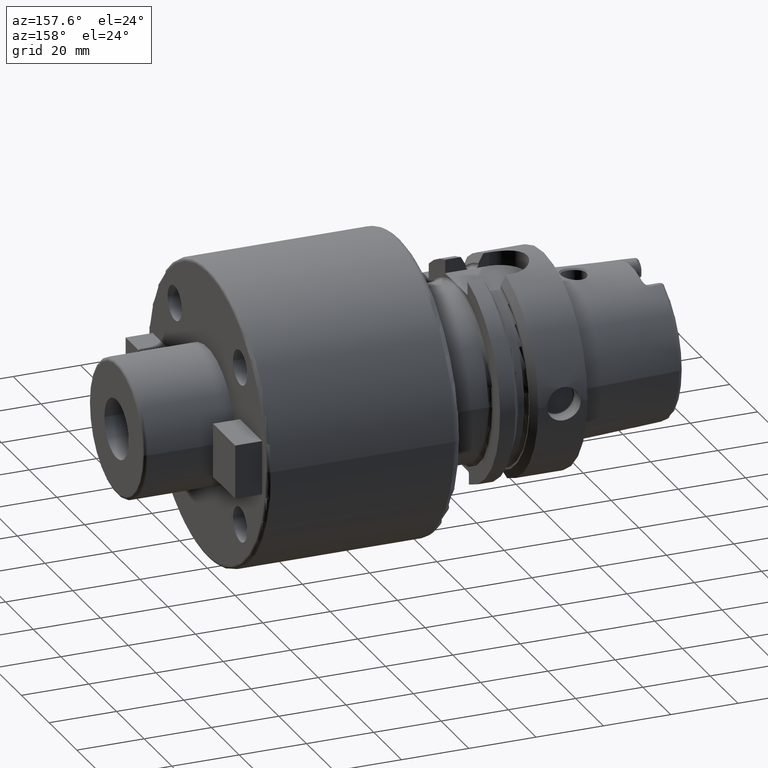
[diagram: clean part render]
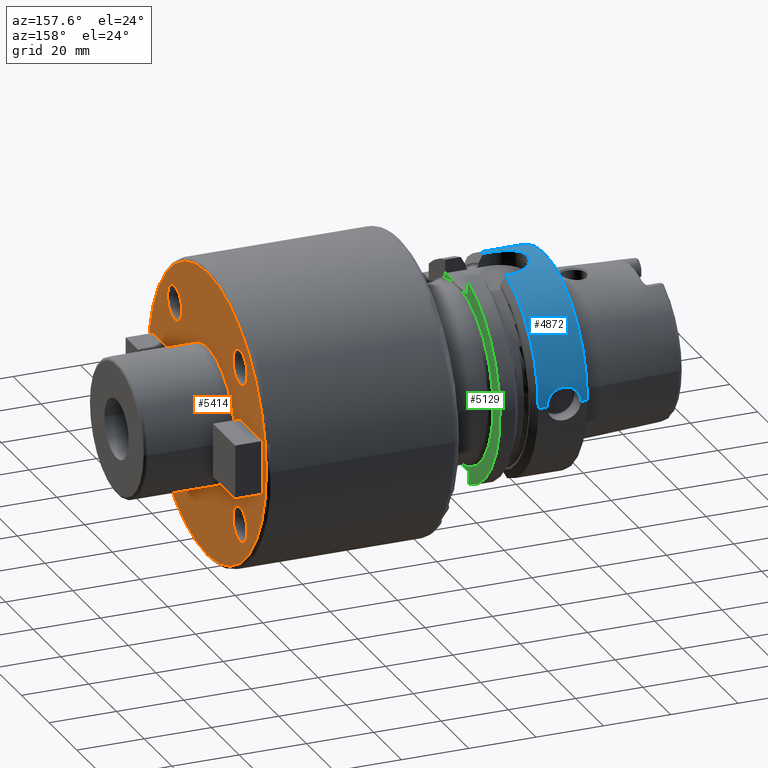
[diagram: same view with three faces highlighted in distinct colors, each labeled with its STEP entity id]
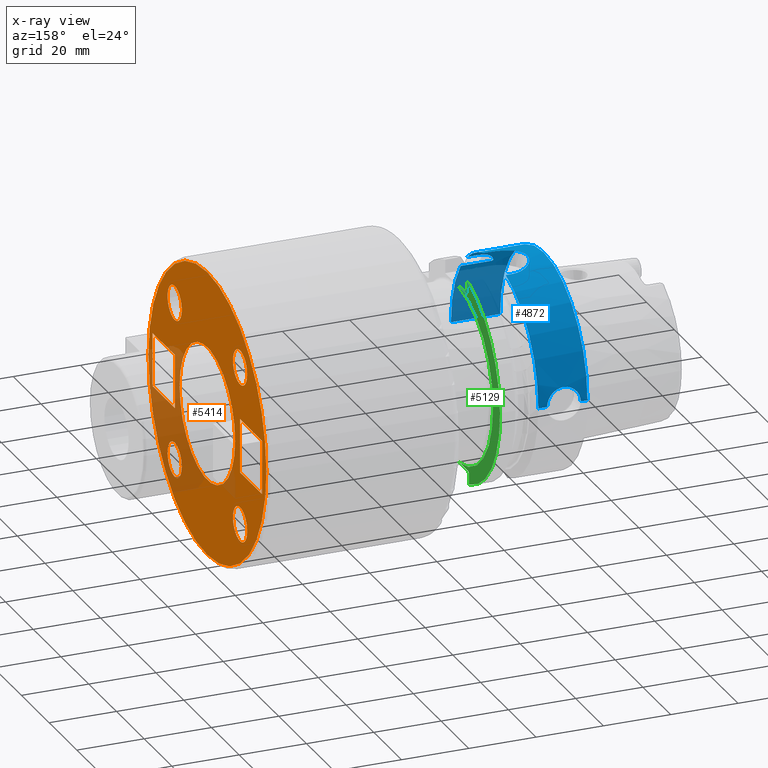
[diagram: x-ray of the same camera — body ghosted, the three highlighted faces saturated]
A machine part, auxiliary view with three faces highlighted in distinct colors.
The next image is the same camera in x-ray (body ghosted, the three faces saturated) — at least one of them is partly hidden behind the body in this view.
Their STEP definitions:

[orange] entity #5414 — the highlighted planar face has unit normal (1, 0, 0).
#1569=CARTESIAN_POINT('',(1.E2,0.E0,0.E0));
#1570=DIRECTION('',(1.E0,0.E0,0.E0));
#1571=DIRECTION('',(0.E0,1.E0,0.E0));
#1572=AXIS2_PLACEMENT_3D('',#1569,#1570,#1571);
#1574=CARTESIAN_POINT('',(1.E2,0.E0,0.E0));
#1575=DIRECTION('',(-1.E0,0.E0,0.E0));
#1576=DIRECTION('',(0.E0,1.E0,0.E0));
#1577=AXIS2_PLACEMENT_3D('',#1574,#1575,#1576);
#1579=CARTESIAN_POINT('',(1.E2,0.E0,0.E0));
#1580=DIRECTION('',(-1.E0,0.E0,0.E0));
#1581=DIRECTION('',(0.E0,1.E0,0.E0));
#1582=AXIS2_PLACEMENT_3D('',#1579,#1580,#1581);
#1584=CARTESIAN_POINT('',(1.E2,0.E0,0.E0));
#1585=DIRECTION('',(-1.E0,0.E0,0.E0));
#1586=DIRECTION('',(0.E0,-1.E0,0.E0));
#1587=AXIS2_PLACEMENT_3D('',#1584,#1585,#1586);
#1589=DIRECTION('',(0.E0,-1.E0,0.E0));
#1590=VECTOR('',#1589,1.6E1);
#1591=CARTESIAN_POINT('',(1.E2,3.95E1,8.E0));
#1592=LINE('',#1591,#1590);
#1593=DIRECTION('',(0.E0,0.E0,-1.E0));
#1594=VECTOR('',#1593,1.6E1);
#1595=CARTESIAN_POINT('',(1.E2,2.35E1,8.E0));
#1596=LINE('',#1595,#1594);
#1597=DIRECTION('',(0.E0,1.E0,0.E0));
#1598=VECTOR('',#1597,1.6E1);
#1599=CARTESIAN_POINT('',(1.E2,2.35E1,-8.E0));
#1600=LINE('',#1599,#1598);
#1601=DIRECTION('',(0.E0,0.E0,1.E0));
#1602=VECTOR('',#1601,1.6E1);
#1603=CARTESIAN_POINT('',(1.E2,3.95E1,-8.E0));
#1604=LINE('',#1603,#1602);
#1605=DIRECTION('',(0.E0,-1.E0,0.E0));
#1606=VECTOR('',#1605,1.6E1);
#1607=CARTESIAN_POINT('',(1.E2,-2.35E1,8.E0));
#1608=LINE('',#1607,#1606);
#1609=DIRECTION('',(0.E0,0.E0,-1.E0));
#1610=VECTOR('',#1609,1.6E1);
#1611=CARTESIAN_POINT('',(1.E2,-3.95E1,8.E0));
#1612=LINE('',#1611,#1610);
#1613=DIRECTION('',(0.E0,1.E0,0.E0));
#1614=VECTOR('',#1613,1.6E1);
#1615=CARTESIAN_POINT('',(1.E2,-3.95E1,-8.E0));
#1616=LINE('',#1615,#1614);
#1617=DIRECTION('',(0.E0,0.E0,1.E0));
#1618=VECTOR('',#1617,1.6E1);
#1619=CARTESIAN_POINT('',(1.E2,-2.35E1,-8.E0));
#1620=LINE('',#1619,#1618);
#1621=CARTESIAN_POINT('',(1.E2,2.358201115257E1,2.358201115257E1));
#1622=DIRECTION('',(1.E0,0.E0,0.E0));
#1623=DIRECTION('',(0.E0,-1.E0,0.E0));
#1624=AXIS2_PLACEMENT_3D('',#1621,#1622,#1623);
#1626=CARTESIAN_POINT('',(1.E2,2.358201115257E1,2.358201115257E1));
#1627=DIRECTION('',(1.E0,0.E0,0.E0));
#1628=DIRECTION('',(0.E0,1.E0,0.E0));
#1629=AXIS2_PLACEMENT_3D('',#1626,#1627,#1628);
#1631=CARTESIAN_POINT('',(1.E2,-2.358201115257E1,2.358201115257E1));
#1632=DIRECTION('',(1.E0,0.E0,0.E0));
#1633=DIRECTION('',(0.E0,0.E0,-1.E0));
#1634=AXIS2_PLACEMENT_3D('',#1631,#1632,#1633);
#1636=CARTESIAN_POINT('',(1.E2,-2.358201115257E1,2.358201115257E1));
#1637=DIRECTION('',(1.E0,0.E0,0.E0));
#1638=DIRECTION('',(0.E0,0.E0,1.E0));
#1639=AXIS2_PLACEMENT_3D('',#1636,#1637,#1638);
#1641=CARTESIAN_POINT('',(1.E2,-2.358201115257E1,-2.358201115257E1));
#1642=DIRECTION('',(1.E0,0.E0,0.E0));
#1643=DIRECTION('',(0.E0,1.E0,0.E0));
#1644=AXIS2_PLACEMENT_3D('',#1641,#1642,#1643);
#1646=CARTESIAN_POINT('',(1.E2,-2.358201115257E1,-2.358201115257E1));
#1647=DIRECTION('',(1.E0,0.E0,0.E0));
#1648=DIRECTION('',(0.E0,-1.E0,0.E0));
#1649=AXIS2_PLACEMENT_3D('',#1646,#1647,#1648);
#1651=CARTESIAN_POINT('',(1.E2,2.358201115257E1,-2.358201115257E1));
#1652=DIRECTION('',(1.E0,0.E0,0.E0));
#1653=DIRECTION('',(0.E0,0.E0,1.E0));
#1654=AXIS2_PLACEMENT_3D('',#1651,#1652,#1653);
#1656=CARTESIAN_POINT('',(1.E2,2.358201115257E1,-2.358201115257E1));
#1657=DIRECTION('',(1.E0,0.E0,0.E0));
#1658=DIRECTION('',(0.E0,0.E0,-1.E0));
#1659=AXIS2_PLACEMENT_3D('',#1656,#1657,#1658);
#3407=CARTESIAN_POINT('',(1.E2,2.E1,0.E0));
#3408=CARTESIAN_POINT('',(1.E2,-2.E1,0.E0));
#3409=VERTEX_POINT('',#3407);
#3410=VERTEX_POINT('',#3408);
#3415=CARTESIAN_POINT('',(1.E2,4.25E1,0.E0));
#3416=CARTESIAN_POINT('',(1.E2,-4.25E1,-1.040949779275E-14));
#3417=VERTEX_POINT('',#3415);
#3418=VERTEX_POINT('',#3416);
#3443=CARTESIAN_POINT('',(1.E2,3.95E1,8.E0));
#3444=CARTESIAN_POINT('',(1.E2,2.35E1,8.E0));
#3445=VERTEX_POINT('',#3443);
#3446=VERTEX_POINT('',#3444);
#3447=CARTESIAN_POINT('',(1.E2,2.35E1,-8.E0));
#3448=VERTEX_POINT('',#3447);
#3449=CARTESIAN_POINT('',(1.E2,3.95E1,-8.E0));
#3450=VERTEX_POINT('',#3449);
#3451=CARTESIAN_POINT('',(1.E2,-2.35E1,8.E0));
#3452=CARTESIAN_POINT('',(1.E2,-3.95E1,8.E0));
#3453=VERTEX_POINT('',#3451);
#3454=VERTEX_POINT('',#3452);
#3455=CARTESIAN_POINT('',(1.E2,-3.95E1,-8.E0));
#3456=VERTEX_POINT('',#3455);
#3457=CARTESIAN_POINT('',(1.E2,-2.35E1,-8.E0));
#3458=VERTEX_POINT('',#3457);
#3532=CARTESIAN_POINT('',(1.E2,1.848201115257E1,2.358201115257E1));
#3533=CARTESIAN_POINT('',(1.E2,2.868201115257E1,2.358201115257E1));
#3534=VERTEX_POINT('',#3532);
#3535=VERTEX_POINT('',#3533);
#3542=CARTESIAN_POINT('',(1.E2,-2.358201115257E1,1.848201115257E1));
#3543=CARTESIAN_POINT('',(1.E2,-2.358201115257E1,2.868201115257E1));
#3544=VERTEX_POINT('',#3542);
#3545=VERTEX_POINT('',#3543);
#3552=CARTESIAN_POINT('',(1.E2,-1.848201115257E1,-2.358201115257E1));
#3553=CARTESIAN_POINT('',(1.E2,-2.868201115257E1,-2.358201115257E1));
#3554=VERTEX_POINT('',#3552);
#3555=VERTEX_POINT('',#3553);
#3562=CARTESIAN_POINT('',(1.E2,2.358201115257E1,-1.848201115257E1));
#3563=CARTESIAN_POINT('',(1.E2,2.358201115257E1,-2.868201115257E1));
#3564=VERTEX_POINT('',#3562);
#3565=VERTEX_POINT('',#3563);
#5355=CARTESIAN_POINT('',(1.E2,0.E0,0.E0));
#5356=DIRECTION('',(1.E0,0.E0,0.E0));
#5357=DIRECTION('',(0.E0,-1.E0,0.E0));
#5358=AXIS2_PLACEMENT_3D('',#5355,#5356,#5357);
#5359=PLANE('',#5358);
#5360=ORIENTED_EDGE('',*,*,#5349,.T.);
#5361=ORIENTED_EDGE('',*,*,#5335,.T.);
#5362=EDGE_LOOP('',(#5360,#5361));
#5363=FACE_OUTER_BOUND('',#5362,.F.);
#5365=ORIENTED_EDGE('',*,*,#5364,.T.);
#5367=ORIENTED_EDGE('',*,*,#5366,.F.);
#5368=EDGE_LOOP('',(#5365,#5367));
#5369=FACE_BOUND('',#5368,.F.);
#5371=ORIENTED_EDGE('',*,*,#5370,.T.);
#5373=ORIENTED_EDGE('',*,*,#5372,.T.);
#5375=ORIENTED_EDGE('',*,*,#5374,.T.);
#5377=ORIENTED_EDGE('',*,*,#5376,.T.);
#5378=EDGE_LOOP('',(#5371,#5373,#5375,#5377));
#5379=FACE_BOUND('',#5378,.F.);
#5381=ORIENTED_EDGE('',*,*,#5380,.T.);
#5383=ORIENTED_EDGE('',*,*,#5382,.T.);
#5385=ORIENTED_EDGE('',*,*,#5384,.T.);
#5387=ORIENTED_EDGE('',*,*,#5386,.T.);
#5388=EDGE_LOOP('',(#5381,#5383,#5385,#5387));
#5389=FACE_BOUND('',#5388,.F.);
#5391=ORIENTED_EDGE('',*,*,#5390,.T.);
#5393=ORIENTED_EDGE('',*,*,#5392,.T.);
#5394=EDGE_LOOP('',(#5391,#5393));
#5395=FACE_BOUND('',#5394,.F.);
#5397=ORIENTED_EDGE('',*,*,#5396,.T.);
#5399=ORIENTED_EDGE('',*,*,#5398,.T.);
#5400=EDGE_LOOP('',(#5397,#5399));
#5401=FACE_BOUND('',#5400,.F.);
#5403=ORIENTED_EDGE('',*,*,#5402,.T.);
#5405=ORIENTED_EDGE('',*,*,#5404,.T.);
#5406=EDGE_LOOP('',(#5403,#5405));
#5407=FACE_BOUND('',#5406,.F.);
#5409=ORIENTED_EDGE('',*,*,#5408,.T.);
#5411=ORIENTED_EDGE('',*,*,#5410,.T.);
#5412=EDGE_LOOP('',(#5409,#5411));
#5413=FACE_BOUND('',#5412,.F.);
#5414=ADVANCED_FACE('',(#5363,#5369,#5379,#5389,#5395,#5401,#5407,#5413),#5359,
.T.);
#1573=CIRCLE('',#1572,2.E1);
#1578=CIRCLE('',#1577,2.E1);
#1583=CIRCLE('',#1582,4.25E1);
#1588=CIRCLE('',#1587,4.25E1);
#1625=CIRCLE('',#1624,5.1E0);
#1630=CIRCLE('',#1629,5.1E0);
#1635=CIRCLE('',#1634,5.1E0);
#1640=CIRCLE('',#1639,5.1E0);
#1645=CIRCLE('',#1644,5.1E0);
#1650=CIRCLE('',#1649,5.1E0);
#1655=CIRCLE('',#1654,5.1E0);
#1660=CIRCLE('',#1659,5.1E0);
#5335=EDGE_CURVE('',#3418,#3417,#1588,.T.);
#5349=EDGE_CURVE('',#3417,#3418,#1583,.T.);
#5364=EDGE_CURVE('',#3409,#3410,#1573,.T.);
#5366=EDGE_CURVE('',#3409,#3410,#1578,.T.);
#5370=EDGE_CURVE('',#3445,#3446,#1592,.T.);
#5372=EDGE_CURVE('',#3446,#3448,#1596,.T.);
#5374=EDGE_CURVE('',#3448,#3450,#1600,.T.);
#5376=EDGE_CURVE('',#3450,#3445,#1604,.T.);
#5380=EDGE_CURVE('',#3453,#3454,#1608,.T.);
#5382=EDGE_CURVE('',#3454,#3456,#1612,.T.);
#5384=EDGE_CURVE('',#3456,#3458,#1616,.T.);
#5386=EDGE_CURVE('',#3458,#3453,#1620,.T.);
#5390=EDGE_CURVE('',#3534,#3535,#1625,.T.);
#5392=EDGE_CURVE('',#3535,#3534,#1630,.T.);
#5396=EDGE_CURVE('',#3544,#3545,#1635,.T.);
#5398=EDGE_CURVE('',#3545,#3544,#1640,.T.);
#5402=EDGE_CURVE('',#3554,#3555,#1645,.T.);
#5404=EDGE_CURVE('',#3555,#3554,#1650,.T.);
#5408=EDGE_CURVE('',#3564,#3565,#1655,.T.);
#5410=EDGE_CURVE('',#3565,#3564,#1660,.T.);

[blue] entity #4872 — the highlighted cylindrical surface (partial cylindrical patch) has radius 31.5 mm, axis along (1, 0, 0).
#1068=CARTESIAN_POINT('',(-1.421085471520E-14,0.E0,0.E0));
#1069=DIRECTION('',(1.E0,0.E0,0.E0));
#1070=DIRECTION('',(0.E0,1.E0,0.E0));
#1071=AXIS2_PLACEMENT_3D('',#1068,#1069,#1070);
#1088=CARTESIAN_POINT('',(5.055280953939E0,-2.412856222307E1,2.025000071719E1));
#1089=CARTESIAN_POINT('',(5.203922975858E0,-2.384570309261E1,2.058703695930E1));
#1090=CARTESIAN_POINT('',(5.532173076798E0,-2.330389811185E1,2.120403265678E1));
#1091=CARTESIAN_POINT('',(6.096196943704E0,-2.257931058132E1,2.197133577912E1));
#1092=CARTESIAN_POINT('',(6.720663761460E0,-2.194020929485E1,2.260770262576E1));
#1093=CARTESIAN_POINT('',(7.403538650806E0,-2.138093627305E1,2.313587798030E1));
#1094=CARTESIAN_POINT('',(8.127595486115E0,-2.090969369163E1,2.356146143823E1));
#1095=CARTESIAN_POINT('',(8.885468985840E0,-2.052416799416E1,2.389720051652E1));
#1096=CARTESIAN_POINT('',(9.676498842341E0,-2.022243837463E1,2.415242961118E1));
#1097=CARTESIAN_POINT('',(1.047995851280E1,-2.000874678948E1,2.432931831120E1));
#1098=CARTESIAN_POINT('',(1.130639266309E1,-1.987868667877E1,2.443545312812E1));
#1099=CARTESIAN_POINT('',(1.185909309251E1,-1.985E1,2.445868966237E1));
#1100=CARTESIAN_POINT('',(1.213701040303E1,-1.985E1,2.445868966237E1));
#1102=DIRECTION('',(1.E0,2.905293196731E-8,-6.510821817001E-8));
#1103=VECTOR('',#1102,9.286887939886E0);
#1104=CARTESIAN_POINT('',(5.335612985355E0,-2.445868993218E1,1.985000060465E1));
#1105=LINE('',#1104,#1103);
#1106=CARTESIAN_POINT('',(1.462250092524E1,0.E0,0.E0));
#1107=DIRECTION('',(1.E0,0.E0,0.E0));
#1108=DIRECTION('',(0.E0,-7.764663384879E-1,6.301587301587E-1));
#1109=AXIS2_PLACEMENT_3D('',#1106,#1107,#1108);
#1111=CARTESIAN_POINT('',(7.E0,3.110064308017E1,5.E0));
#1112=CARTESIAN_POINT('',(6.762289362530E0,3.110064308017E1,5.E0));
#1113=CARTESIAN_POINT('',(6.291638752551E0,3.110604175503E1,4.966603315548E0));
#1114=CARTESIAN_POINT('',(5.590941042085E0,3.113002312530E1,4.815051890973E0));
#1115=CARTESIAN_POINT('',(4.922622791572E0,3.116768162346E1,4.566770855038E0));
#1116=CARTESIAN_POINT('',(4.290278046526E0,3.121652868953E1,4.222399367418E0));
#1117=CARTESIAN_POINT('',(3.717410291985E0,3.127184393545E1,3.794316921940E0));
#1118=CARTESIAN_POINT('',(3.206193230594E0,3.133001984817E1,3.283155949907E0));
#1119=CARTESIAN_POINT('',(2.778140338616E0,3.138511708835E1,2.710581430129E0));
#1120=CARTESIAN_POINT('',(2.433504878656E0,3.143364983629E1,2.077962340417E0));
#1121=CARTESIAN_POINT('',(2.185264531596E0,3.147092658786E1,1.410162050339E0));
#1122=CARTESIAN_POINT('',(2.033388478478E0,3.149467218381E1,7.086038393014E-1));
#1123=CARTESIAN_POINT('',(2.E0,3.15E1,2.377507523918E-1));
#1124=CARTESIAN_POINT('',(2.E0,3.15E1,-1.916034746595E-14));
#1126=CARTESIAN_POINT('',(1.2E1,3.15E1,0.E0));
#1127=CARTESIAN_POINT('',(1.2E1,3.15E1,2.377495474180E-1));
#1128=CARTESIAN_POINT('',(1.196662761645E1,3.149467458654E1,7.086186534272E-1));
#1129=CARTESIAN_POINT('',(1.181460579439E1,3.147090665108E1,1.410624843432E0));
#1130=CARTESIAN_POINT('',(1.156638499402E1,3.143363374637E1,2.078189492676E0));
#1131=CARTESIAN_POINT('',(1.122165706390E1,3.138508950965E1,2.710906952246E0));
#1132=CARTESIAN_POINT('',(1.079359615750E1,3.132999459490E1,3.283389066833E0));
#1133=CARTESIAN_POINT('',(1.028239612207E1,3.127182308878E1,3.794489355038E0));
#1134=CARTESIAN_POINT('',(9.709426385252E0,3.121650334061E1,4.222584855819E0));
#1135=CARTESIAN_POINT('',(9.077222790639E0,3.116767152827E1,4.566838108074E0));
#1136=CARTESIAN_POINT('',(8.408812552891E0,3.113001179404E1,4.815125199641E0));
#1137=CARTESIAN_POINT('',(7.708232303628E0,3.110603996499E1,4.966613968094E0));
#1138=CARTESIAN_POINT('',(7.237659908688E0,3.110064308017E1,5.E0));
#1139=CARTESIAN_POINT('',(7.E0,3.110064308017E1,5.E0));
#1141=CARTESIAN_POINT('',(1.462250092524E1,0.E0,0.E0));
#1142=DIRECTION('',(1.E0,0.E0,0.E0));
#1143=DIRECTION('',(0.E0,1.E0,0.E0));
#1144=AXIS2_PLACEMENT_3D('',#1141,#1142,#1143);
#1146=DIRECTION('',(1.E0,0.E0,0.E0));
#1147=VECTOR('',#1146,1.655000925241E0);
#1148=CARTESIAN_POINT('',(1.29675E1,8.0175E0,3.046259499370E1));
#1149=LINE('',#1148,#1147);
#1150=CARTESIAN_POINT('',(1.29675E1,-8.0175E0,3.046259499370E1));
#1151=CARTESIAN_POINT('',(1.262029466193E1,-8.0175E0,3.046259499370E1));
#1152=CARTESIAN_POINT('',(1.193292082029E1,-7.972856309682E0,3.047439785027E1));
#1153=CARTESIAN_POINT('',(1.091425902188E1,-7.773176787902E0,3.052624418591E1));
#1154=CARTESIAN_POINT('',(9.934126849983E0,-7.445404290975E0,3.060831570964E1));
#1155=CARTESIAN_POINT('',(9.004286205686E0,-6.994846174415E0,3.071501370342E1));
#1156=CARTESIAN_POINT('',(8.138619971222E0,-6.428343040649E0,3.083929437245E1));
#1157=CARTESIAN_POINT('',(7.341033244269E0,-5.744094981007E0,3.097488281900E1));
#1158=CARTESIAN_POINT('',(6.636610015904E0,-4.956823973346E0,3.111134005505E1));
#1159=CARTESIAN_POINT('',(6.043298615168E0,-4.087231355503E0,3.123817795333E1));
#1160=CARTESIAN_POINT('',(5.564354260648E0,-3.139626798488E0,3.134839057540E1));
#1161=CARTESIAN_POINT('',(5.208675508384E0,-2.115659667041E0,3.143476377212E1));
#1162=CARTESIAN_POINT('',(4.995564432998E0,-1.053473182399E0,3.148835416009E1));
#1163=CARTESIAN_POINT('',(4.927168873806E0,9.826508337445E-4,3.150583538732E1));
#1164=CARTESIAN_POINT('',(4.995760366771E0,1.054869977933E0,3.148830421554E1));
#1165=CARTESIAN_POINT('',(5.209100296272E0,2.117206961075E0,3.143465845843E1));
#1166=CARTESIAN_POINT('',(5.564768023101E0,3.140504656583E0,3.134829355759E1));
#1167=CARTESIAN_POINT('',(6.043465163200E0,4.087475455639E0,3.123814225608E1));
#1168=CARTESIAN_POINT('',(6.636650004810E0,4.956867733051E0,3.111133228169E1));
#1169=CARTESIAN_POINT('',(7.340978157719E0,5.744022439956E0,3.097489453754E1));
#1170=CARTESIAN_POINT('',(8.138191392118E0,6.427992830706E0,3.083936557780E1));
#1171=CARTESIAN_POINT('',(9.003473595842E0,6.994378480458E0,3.071512050332E1));
#1172=CARTESIAN_POINT('',(9.933336680083E0,7.445092599368E0,3.060839241432E1));
#1173=CARTESIAN_POINT('',(1.091365443769E1,7.773025904739E0,3.052628299010E1));
#1174=CARTESIAN_POINT('',(1.193250504209E1,7.972814414214E0,3.047440893684E1));
#1175=CARTESIAN_POINT('',(1.262014082393E1,8.0175E0,3.046259499370E1));
#1176=CARTESIAN_POINT('',(1.29675E1,8.0175E0,3.046259499370E1));
#1178=DIRECTION('',(1.E0,0.E0,0.E0));
#1179=VECTOR('',#1178,1.655000925241E0);
#1180=CARTESIAN_POINT('',(1.29675E1,-8.0175E0,3.046259499370E1));
#1181=LINE('',#1180,#1179);
#1182=CARTESIAN_POINT('',(1.462250092524E1,0.E0,0.E0));
#1183=DIRECTION('',(1.E0,0.E0,0.E0));
#1184=DIRECTION('',(0.E0,-2.545238095238E-1,9.670665077364E-1));
#1185=AXIS2_PLACEMENT_3D('',#1182,#1183,#1184);
#1187=DIRECTION('',(1.E0,0.E0,0.E0));
#1188=VECTOR('',#1187,2.485490522210E0);
#1189=CARTESIAN_POINT('',(1.213701040303E1,-1.985E1,2.445868966237E1));
#1190=LINE('',#1189,#1188);
#1200=CARTESIAN_POINT('',(5.335612985355E0,-2.445868993218E1,1.985000060465E1));
#1201=CARTESIAN_POINT('',(5.288536897563E0,-2.440508682723E1,1.991604905347E1));
#1202=CARTESIAN_POINT('',(5.194710350190E0,-2.429648646449E1,2.004876841892E1));
#1203=CARTESIAN_POINT('',(5.101613984819E0,-2.418502887122E1,2.018271879185E1));
#1204=CARTESIAN_POINT('',(5.055280953939E0,-2.412856222307E1,2.025000071719E1));
#1983=CARTESIAN_POINT('',(1.462250092524E1,-2.445868966237E1,1.985E1));
#2076=DIRECTION('',(-1.E0,0.E0,0.E0));
#2077=VECTOR('',#2076,2.622500925241E0);
#2078=CARTESIAN_POINT('',(1.462250092524E1,3.15E1,0.E0));
#2079=LINE('',#2078,#2077);
#2110=DIRECTION('',(-1.E0,0.E0,1.086605287208E-14));
#2111=VECTOR('',#2110,2.E0);
#2112=CARTESIAN_POINT('',(2.E0,3.15E1,-1.916034746595E-14));
#2113=LINE('',#2112,#2111);
#2114=DIRECTION('',(-1.E0,0.E0,0.E0));
#2115=VECTOR('',#2114,1.462250092524E1);
#2116=CARTESIAN_POINT('',(1.462250092524E1,-3.15E1,0.E0));
#2117=LINE('',#2116,#2115);
#2997=CARTESIAN_POINT('',(-1.421085471520E-14,3.15E1,0.E0));
#2998=CARTESIAN_POINT('',(-1.421085471520E-14,-3.15E1,0.E0));
#2999=VERTEX_POINT('',#2997);
#3000=VERTEX_POINT('',#2998);
#3218=CARTESIAN_POINT('',(1.462250092524E1,-3.15E1,0.E0));
#3219=VERTEX_POINT('',#3218);
#3244=CARTESIAN_POINT('',(7.E0,3.110064308017E1,5.E0));
#3245=VERTEX_POINT('',#3244);
#3248=VERTEX_POINT('',#1124);
#3249=VERTEX_POINT('',#1126);
#3250=CARTESIAN_POINT('',(1.462250092524E1,3.15E1,0.E0));
#3251=VERTEX_POINT('',#3250);
#3290=CARTESIAN_POINT('',(1.29675E1,8.0175E0,3.046259499370E1));
#3291=VERTEX_POINT('',#3290);
#3292=CARTESIAN_POINT('',(1.29675E1,-8.0175E0,3.046259499370E1));
#3293=VERTEX_POINT('',#3292);
#3314=VERTEX_POINT('',#1200);
#3315=VERTEX_POINT('',#1204);
#3322=CARTESIAN_POINT('',(1.213701040303E1,-1.985E1,2.445868966237E1));
#3323=VERTEX_POINT('',#3322);
#3328=CARTESIAN_POINT('',(1.462250092524E1,-8.0175E0,3.046259499370E1));
#3329=VERTEX_POINT('',#3328);
#3330=CARTESIAN_POINT('',(1.462250092524E1,8.0175E0,3.046259499370E1));
#3331=VERTEX_POINT('',#3330);
#3386=CARTESIAN_POINT('',(1.462250092524E1,-1.985E1,2.445868966237E1));
#3387=VERTEX_POINT('',#3386);
#3406=VERTEX_POINT('',#1983);
#4834=CARTESIAN_POINT('',(-3.49E1,0.E0,0.E0));
#4835=DIRECTION('',(1.E0,0.E0,0.E0));
#4836=DIRECTION('',(0.E0,-1.E0,0.E0));
#4837=AXIS2_PLACEMENT_3D('',#4834,#4835,#4836);
#4838=CYLINDRICAL_SURFACE('',#4837,3.15E1);
#4840=ORIENTED_EDGE('',*,*,#4839,.F.);
#4842=ORIENTED_EDGE('',*,*,#4841,.F.);
#4844=ORIENTED_EDGE('',*,*,#4843,.T.);
#4846=ORIENTED_EDGE('',*,*,#4845,.T.);
#4848=ORIENTED_EDGE('',*,*,#4847,.T.);
#4849=ORIENTED_EDGE('',*,*,#4823,.F.);
#4851=ORIENTED_EDGE('',*,*,#4850,.F.);
#4853=ORIENTED_EDGE('',*,*,#4852,.F.);
#4855=ORIENTED_EDGE('',*,*,#4854,.F.);
#4857=ORIENTED_EDGE('',*,*,#4856,.F.);
#4859=ORIENTED_EDGE('',*,*,#4858,.T.);
#4861=ORIENTED_EDGE('',*,*,#4860,.F.);
#4863=ORIENTED_EDGE('',*,*,#4862,.F.);
#4865=ORIENTED_EDGE('',*,*,#4864,.T.);
#4867=ORIENTED_EDGE('',*,*,#4866,.T.);
#4869=ORIENTED_EDGE('',*,*,#4868,.F.);
#4870=EDGE_LOOP('',(#4840,#4842,#4844,#4846,#4848,#4849,#4851,#4853,#4855,#4857,
#4859,#4861,#4863,#4865,#4867,#4869));
#4871=FACE_OUTER_BOUND('',#4870,.F.);
#4872=ADVANCED_FACE('',(#4871),#4838,.T.);
#1072=CIRCLE('',#1071,3.15E1);
#1101=B_SPLINE_CURVE_WITH_KNOTS('',3,(#1088,#1089,#1090,#1091,#1092,#1093,#1094,
#1095,#1096,#1097,#1098,#1099,#1100),.UNSPECIFIED.,.F.,.F.,(4,1,1,1,1,1,1,1,1,1,
4),(0.E0,1.E-1,2.E-1,3.E-1,4.E-1,5.E-1,6.E-1,7.E-1,8.E-1,9.E-1,1.E0),
.UNSPECIFIED.);
#1110=CIRCLE('',#1109,3.15E1);
#1125=B_SPLINE_CURVE_WITH_KNOTS('',3,(#1111,#1112,#1113,#1114,#1115,#1116,#1117,
#1118,#1119,#1120,#1121,#1122,#1123,#1124),.UNSPECIFIED.,.F.,.F.,(4,1,1,1,1,1,1,
1,1,1,1,4),(0.E0,9.090909090909E-2,1.818181818182E-1,2.727272727273E-1,
3.636363636364E-1,4.545454545455E-1,5.454545454545E-1,6.363636363636E-1,
7.272727272727E-1,8.181818181818E-1,9.090909090909E-1,1.E0),.UNSPECIFIED.);
#1140=B_SPLINE_CURVE_WITH_KNOTS('',3,(#1126,#1127,#1128,#1129,#1130,#1131,#1132,
#1133,#1134,#1135,#1136,#1137,#1138,#1139),.UNSPECIFIED.,.F.,.F.,(4,1,1,1,1,1,1,
1,1,1,1,4),(0.E0,9.090909090909E-2,1.818181818182E-1,2.727272727273E-1,
3.636363636364E-1,4.545454545455E-1,5.454545454545E-1,6.363636363636E-1,
7.272727272727E-1,8.181818181818E-1,9.090909090909E-1,1.E0),.UNSPECIFIED.);
#1145=CIRCLE('',#1144,3.15E1);
#1177=B_SPLINE_CURVE_WITH_KNOTS('',3,(#1150,#1151,#1152,#1153,#1154,#1155,#1156,
#1157,#1158,#1159,#1160,#1161,#1162,#1163,#1164,#1165,#1166,#1167,#1168,#1169,
#1170,#1171,#1172,#1173,#1174,#1175,#1176),.UNSPECIFIED.,.F.,.F.,(4,1,1,1,1,1,1,
1,1,1,1,1,1,1,1,1,1,1,1,1,1,1,1,1,4),(0.E0,4.166666666667E-2,8.333333333333E-2,
1.25E-1,1.666666666667E-1,2.083333333333E-1,2.5E-1,2.916666666667E-1,
3.333333333333E-1,3.75E-1,4.166666666667E-1,4.583333333333E-1,5.E-1,
5.416666666667E-1,5.833333333333E-1,6.25E-1,6.666666666667E-1,7.083333333333E-1,
7.5E-1,7.916666666667E-1,8.333333333333E-1,8.75E-1,9.166666666667E-1,
9.583333333333E-1,1.E0),.UNSPECIFIED.);
#1186=CIRCLE('',#1185,3.15E1);
#1205=B_SPLINE_CURVE_WITH_KNOTS('',3,(#1200,#1201,#1202,#1203,#1204),
.UNSPECIFIED.,.F.,.F.,(4,1,4),(0.E0,5.E-1,1.E0),.UNSPECIFIED.);
#4823=EDGE_CURVE('',#2999,#3000,#1072,.T.);
#4839=EDGE_CURVE('',#3315,#3323,#1101,.T.);
#4841=EDGE_CURVE('',#3314,#3315,#1205,.T.);
#4843=EDGE_CURVE('',#3314,#3406,#1105,.T.);
#4845=EDGE_CURVE('',#3406,#3219,#1110,.T.);
#4847=EDGE_CURVE('',#3219,#3000,#2117,.T.);
#4850=EDGE_CURVE('',#3248,#2999,#2113,.T.);
#4852=EDGE_CURVE('',#3245,#3248,#1125,.T.);
#4854=EDGE_CURVE('',#3249,#3245,#1140,.T.);
#4856=EDGE_CURVE('',#3251,#3249,#2079,.T.);
#4858=EDGE_CURVE('',#3251,#3331,#1145,.T.);
#4860=EDGE_CURVE('',#3291,#3331,#1149,.T.);
#4862=EDGE_CURVE('',#3293,#3291,#1177,.T.);
#4864=EDGE_CURVE('',#3293,#3329,#1181,.T.);
#4866=EDGE_CURVE('',#3329,#3387,#1186,.T.);
#4868=EDGE_CURVE('',#3323,#3387,#1190,.T.);

[green] entity #5129 — the highlighted planar face has unit normal (1, 0, 0).
#1336=DIRECTION('',(0.E0,0.E0,-1.E0));
#1337=VECTOR('',#1336,3.381694679888E0);
#1338=CARTESIAN_POINT('',(2.6E1,9.0175E0,-2.68E1));
#1339=LINE('',#1338,#1337);
#1366=DIRECTION('',(0.E0,-1.E0,-5.551478836367E-8));
#1367=VECTOR('',#1366,6.317502680469E0);
#1368=CARTESIAN_POINT('',(2.6E1,8.6175E0,-2.64E1));
#1369=LINE('',#1368,#1367);
#1391=CARTESIAN_POINT('',(2.6E1,0.E0,0.E0));
#1392=DIRECTION('',(-1.E0,0.E0,0.E0));
#1393=DIRECTION('',(0.E0,1.E0,0.E0));
#1394=AXIS2_PLACEMENT_3D('',#1391,#1392,#1393);
#1396=CARTESIAN_POINT('',(2.6E1,0.E0,0.E0));
#1397=DIRECTION('',(-1.E0,0.E0,0.E0));
#1398=DIRECTION('',(0.E0,8.679259077790E-2,9.962264030762E-1));
#1399=AXIS2_PLACEMENT_3D('',#1396,#1397,#1398);
#1401=DIRECTION('',(0.E0,1.E0,-5.599838155530E-8));
#1402=VECTOR('',#1401,5.717502447227E0);
#1403=CARTESIAN_POINT('',(2.6E1,2.299997552773E0,2.640000032017E1));
#1404=LINE('',#1403,#1402);
#1951=DIRECTION('',(0.E0,0.E0,1.E0));
#1952=VECTOR('',#1951,4.062594993697E0);
#1953=CARTESIAN_POINT('',(2.6E1,8.0175E0,2.64E1));
#1954=LINE('',#1953,#1952);
#2034=CARTESIAN_POINT('',(2.6E1,0.E0,0.E0));
#2035=DIRECTION('',(1.E0,0.E0,0.E0));
#2036=DIRECTION('',(0.E0,2.862698412698E-1,-9.581490374568E-1));
#2037=AXIS2_PLACEMENT_3D('',#2034,#2035,#2036);
#2376=DIRECTION('',(0.E0,7.071067811866E-1,-7.071067811865E-1));
#2377=VECTOR('',#2376,5.656854249492E-1);
#2378=CARTESIAN_POINT('',(2.6E1,8.6175E0,-2.64E1));
#2379=LINE('',#2378,#2377);
#3473=CARTESIAN_POINT('',(2.6E1,8.0175E0,2.64E1));
#3474=CARTESIAN_POINT('',(2.6E1,8.0175E0,3.046259499370E1));
#3475=VERTEX_POINT('',#3473);
#3476=VERTEX_POINT('',#3474);
#3477=CARTESIAN_POINT('',(2.6E1,9.0175E0,-2.68E1));
#3478=CARTESIAN_POINT('',(2.6E1,9.0175E0,-3.018169467989E1));
#3479=VERTEX_POINT('',#3477);
#3480=VERTEX_POINT('',#3478);
#3487=CARTESIAN_POINT('',(2.6E1,8.6175E0,-2.64E1));
#3488=VERTEX_POINT('',#3487);
#3503=CARTESIAN_POINT('',(2.6E1,2.299997552773E0,2.640000032017E1));
#3504=VERTEX_POINT('',#3503);
#3505=CARTESIAN_POINT('',(2.6E1,2.299997319531E0,-2.640000035071E1));
#3506=VERTEX_POINT('',#3505);
#3524=CARTESIAN_POINT('',(2.6E1,2.65E1,0.E0));
#3525=VERTEX_POINT('',#3524);
#5108=CARTESIAN_POINT('',(2.6E1,0.E0,0.E0));
#5109=DIRECTION('',(1.E0,0.E0,0.E0));
#5110=DIRECTION('',(0.E0,-1.E0,0.E0));
#5111=AXIS2_PLACEMENT_3D('',#5108,#5109,#5110);
#5112=PLANE('',#5111);
#5114=ORIENTED_EDGE('',*,*,#5113,.T.);
#5116=ORIENTED_EDGE('',*,*,#5115,.T.);
#5118=ORIENTED_EDGE('',*,*,#5117,.F.);
#5119=ORIENTED_EDGE('',*,*,#5000,.F.);
#5121=ORIENTED_EDGE('',*,*,#5120,.F.);
#5122=ORIENTED_EDGE('',*,*,#5057,.T.);
#5124=ORIENTED_EDGE('',*,*,#5123,.F.);
#5126=ORIENTED_EDGE('',*,*,#5125,.F.);
#5127=EDGE_LOOP('',(#5114,#5116,#5118,#5119,#5121,#5122,#5124,#5126));
#5128=FACE_OUTER_BOUND('',#5127,.F.);
#5129=ADVANCED_FACE('',(#5128),#5112,.T.);
#1395=CIRCLE('',#1394,2.65E1);
#1400=CIRCLE('',#1399,2.65E1);
#2038=CIRCLE('',#2037,3.15E1);
#5000=EDGE_CURVE('',#3479,#3480,#1339,.T.);
#5057=EDGE_CURVE('',#3488,#3506,#1369,.T.);
#5113=EDGE_CURVE('',#3504,#3475,#1404,.T.);
#5115=EDGE_CURVE('',#3475,#3476,#1954,.T.);
#5117=EDGE_CURVE('',#3480,#3476,#2038,.T.);
#5120=EDGE_CURVE('',#3488,#3479,#2379,.T.);
#5123=EDGE_CURVE('',#3525,#3506,#1395,.T.);
#5125=EDGE_CURVE('',#3504,#3525,#1400,.T.);